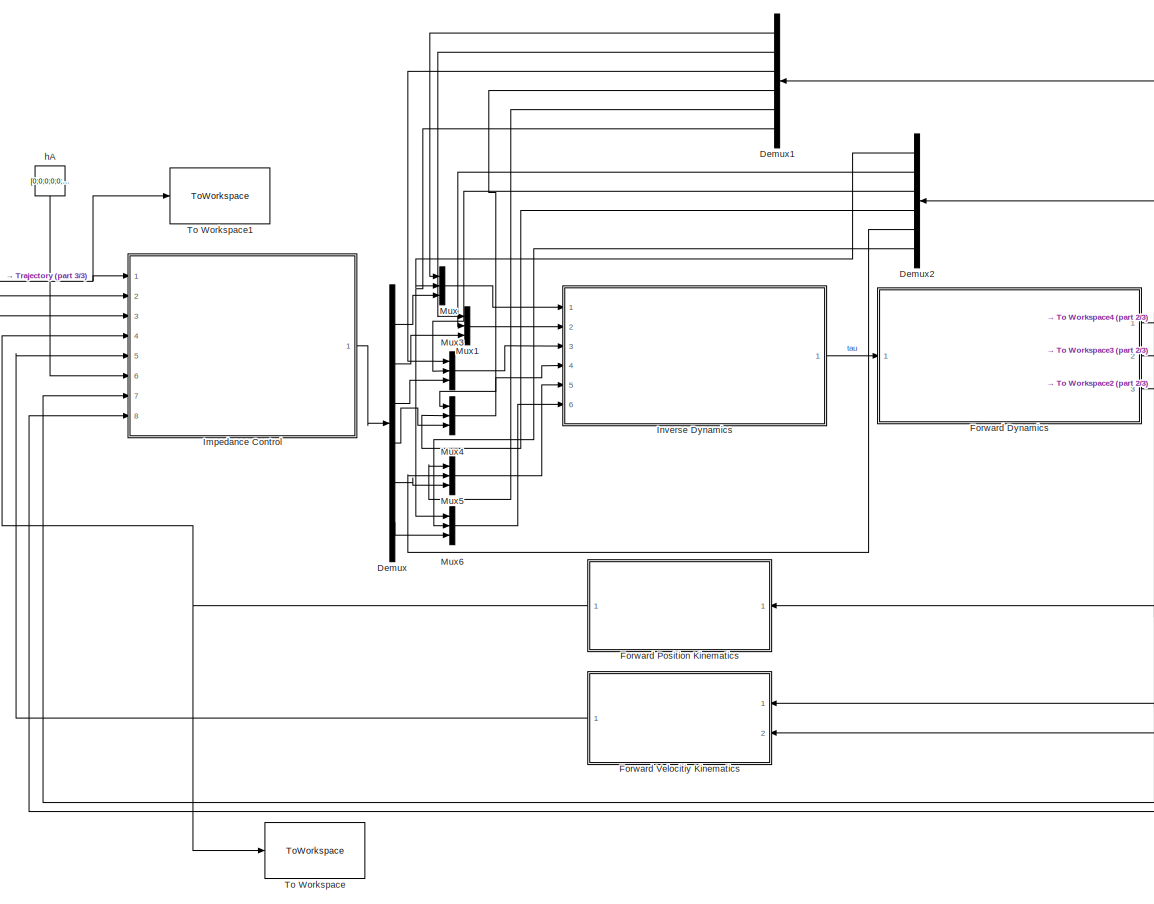
[diagram: root canvas - part 1/3, center side, full height]
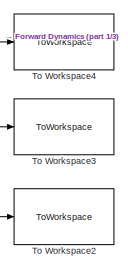
[diagram: root canvas - part 2/3, middle right region]
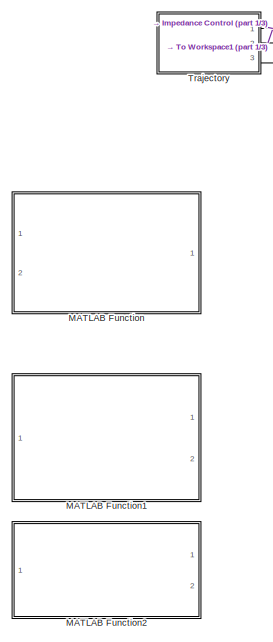
[diagram: root canvas - part 3/3, middle left region]
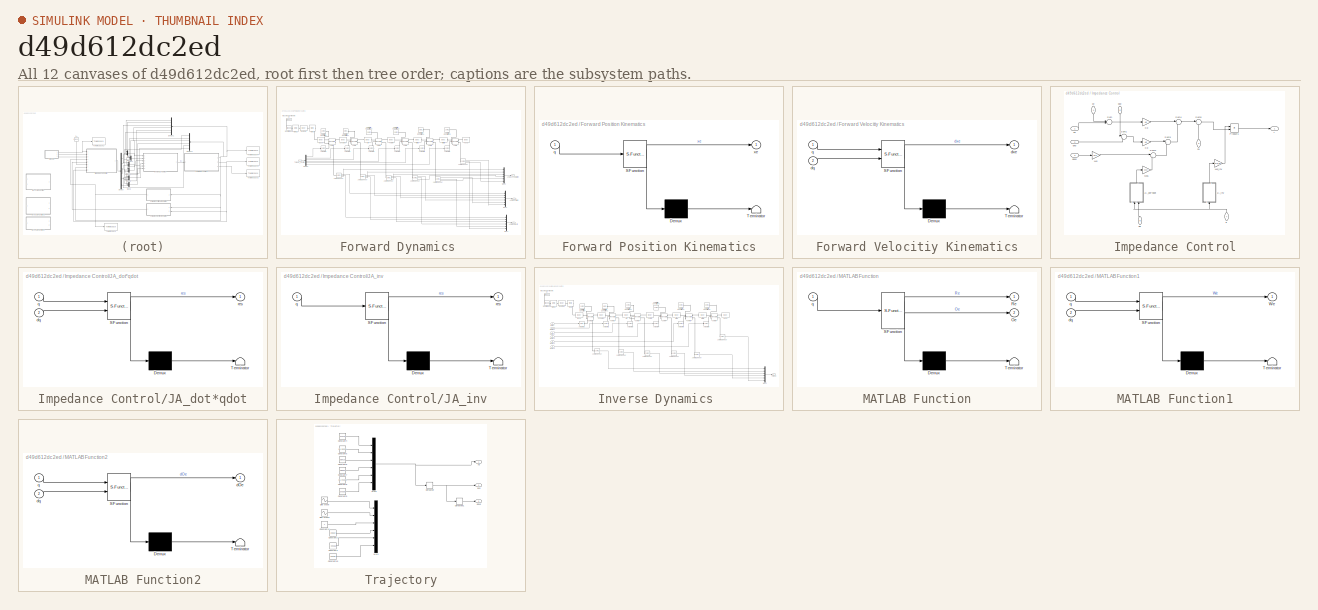
[diagram: thumbnail index - all 12 canvases of the model, root first then tree order]
MODEL slx_d49d612dc2ed
KIND model
CONFIG AbsTol = auto
CONFIG EnableMultiTasking = off
CONFIG FixedStep = auto
CONFIG MaxStep = auto
CONFIG MinStep = auto
CONFIG RelTol = 1e-1
CONFIG SampleTimeConstraint = Unconstrained
CONFIG Solver = ode23t
CONFIG SolverName = ode23t
CONFIG StartTime = 0.0
CONFIG StopTime = 10.0
BLOCK [Demux] Demux
  DisplayOption = bar
  Outputs = 6
  Ports = [1, 6]
BLOCK [Demux] Demux1
  DisplayOption = bar
  Outputs = 6
  Ports = [1, 6]
BLOCK [Demux] Demux2
  DisplayOption = bar
  Outputs = 6
  Ports = [1, 6]
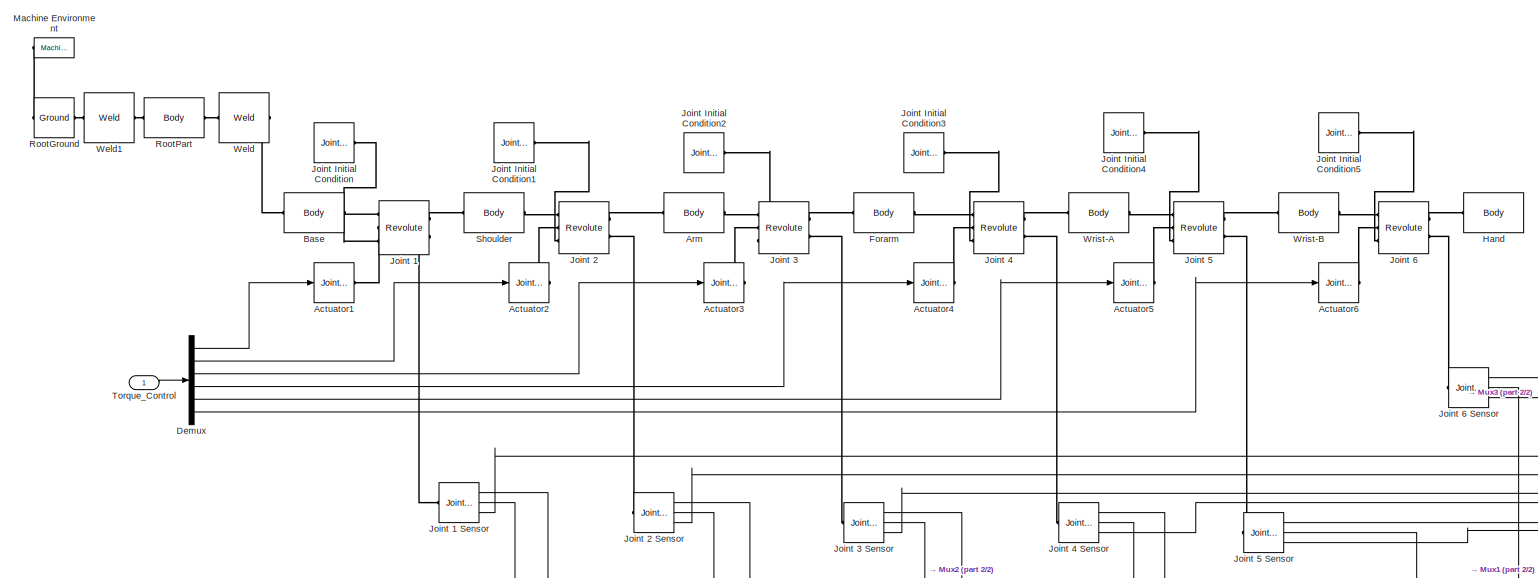
[diagram: Forward Dynamics  - part 1/2, full width, top band]
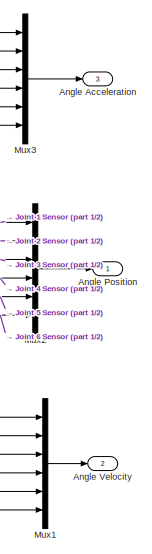
[diagram: Forward Dynamics  - part 2/2, bottom right region]
BLOCK [SubSystem] Forward Dynamics 
  Ports = [1, 3]
  RequestExecContextInheritance = off
  Variant = off
BLOCK [Reference] Forward Dynamics /Actuator1  REF=mblibv1/Sensors & 
Actuators/Joint Actuator
  Ports = [1, 0, 0, 0, 0, 0, 1]
  SourceBlock = mblibv1/Sensors & \nActuators/Joint Actuator
  SourceProductBaseCode = MS
  SourceProductName = Simscape Multibody
  SourceType = Joint Actuator
BLOCK [Reference] Forward Dynamics /Actuator2  REF=mblibv1/Sensors & 
Actuators/Joint Actuator
  Ports = [1, 0, 0, 0, 0, 0, 1]
  SourceBlock = mblibv1/Sensors & \nActuators/Joint Actuator
  SourceProductBaseCode = MS
  SourceProductName = Simscape Multibody
  SourceType = Joint Actuator
BLOCK [Reference] Forward Dynamics /Actuator3  REF=mblibv1/Sensors & 
Actuators/Joint Actuator
  Ports = [1, 0, 0, 0, 0, 0, 1]
  SourceBlock = mblibv1/Sensors & \nActuators/Joint Actuator
  SourceProductBaseCode = MS
  SourceProductName = Simscape Multibody
  SourceType = Joint Actuator
BLOCK [Reference] Forward Dynamics /Actuator4  REF=mblibv1/Sensors & 
Actuators/Joint Actuator
  Ports = [1, 0, 0, 0, 0, 0, 1]
  SourceBlock = mblibv1/Sensors & \nActuators/Joint Actuator
  SourceProductBaseCode = MS
  SourceProductName = Simscape Multibody
  SourceType = Joint Actuator
BLOCK [Reference] Forward Dynamics /Actuator5  REF=mblibv1/Sensors & 
Actuators/Joint Actuator
  Ports = [1, 0, 0, 0, 0, 0, 1]
  SourceBlock = mblibv1/Sensors & \nActuators/Joint Actuator
  SourceProductBaseCode = MS
  SourceProductName = Simscape Multibody
  SourceType = Joint Actuator
BLOCK [Reference] Forward Dynamics /Actuator6  REF=mblibv1/Sensors & 
Actuators/Joint Actuator
  Ports = [1, 0, 0, 0, 0, 0, 1]
  SourceBlock = mblibv1/Sensors & \nActuators/Joint Actuator
  SourceProductBaseCode = MS
  SourceProductName = Simscape Multibody
  SourceType = Joint Actuator
BLOCK [Outport] Forward Dynamics /Angle Acceleration
  IconDisplay = Port number
  Port = 3
BLOCK [Outport] Forward Dynamics /Angle Position 
  IconDisplay = Port number
BLOCK [Outport] Forward Dynamics /Angle Velocity
  IconDisplay = Port number
  Port = 2
BLOCK [Reference] Forward Dynamics /Arm  REF=mblibv1/Bodies/Body
  Ports = [0, 0, 0, 0, 0, 1, 1]
  SourceBlock = mblibv1/Bodies/Body
  SourceProductBaseCode = MS
  SourceProductName = Simscape Multibody
  SourceType = Body
BLOCK [Reference] Forward Dynamics /Base  REF=mblibv1/Bodies/Body
  Ports = [0, 0, 0, 0, 0, 1, 1]
  SourceBlock = mblibv1/Bodies/Body
  SourceProductBaseCode = MS
  SourceProductName = Simscape Multibody
  SourceType = Body
BLOCK [Demux] Forward Dynamics /Demux
  DisplayOption = bar
  Outputs = 6
  Ports = [1, 6]
BLOCK [Reference] Forward Dynamics /Forarm  REF=mblibv1/Bodies/Body
  Ports = [0, 0, 0, 0, 0, 1, 1]
  SourceBlock = mblibv1/Bodies/Body
  SourceProductBaseCode = MS
  SourceProductName = Simscape Multibody
  SourceType = Body
BLOCK [Reference] Forward Dynamics /Hand  REF=mblibv1/Bodies/Body
  Ports = [0, 0, 0, 0, 0, 1]
  SourceBlock = mblibv1/Bodies/Body
  SourceProductBaseCode = MS
  SourceProductName = Simscape Multibody
  SourceType = Body
BLOCK [Reference] Forward Dynamics /Joint 1  REF=mblibv1/Joints/Revolute
  Ports = [0, 0, 0, 0, 0, 3, 2]
  SourceBlock = mblibv1/Joints/Revolute
  SourceProductBaseCode = MS
  SourceProductName = Simscape Multibody
  SourceType = Revolute
BLOCK [Reference] Forward Dynamics /Joint 1 Sensor  REF=mblibv1/Sensors & 
Actuators/Joint Sensor
  Ports = [0, 3, 0, 0, 0, 1]
  SourceBlock = mblibv1/Sensors & \nActuators/Joint Sensor
  SourceProductBaseCode = MS
  SourceProductName = Simscape Multibody
  SourceType = Joint Sensor
BLOCK [Reference] Forward Dynamics /Joint 2  REF=mblibv1/Joints/Revolute
  Ports = [0, 0, 0, 0, 0, 3, 2]
  SourceBlock = mblibv1/Joints/Revolute
  SourceProductBaseCode = MS
  SourceProductName = Simscape Multibody
  SourceType = Revolute
BLOCK [Reference] Forward Dynamics /Joint 2 Sensor  REF=mblibv1/Sensors & 
Actuators/Joint Sensor
  Ports = [0, 3, 0, 0, 0, 1]
  SourceBlock = mblibv1/Sensors & \nActuators/Joint Sensor
  SourceProductBaseCode = MS
  SourceProductName = Simscape Multibody
  SourceType = Joint Sensor
BLOCK [Reference] Forward Dynamics /Joint 3  REF=mblibv1/Joints/Revolute
  Ports = [0, 0, 0, 0, 0, 3, 2]
  SourceBlock = mblibv1/Joints/Revolute
  SourceProductBaseCode = MS
  SourceProductName = Simscape Multibody
  SourceType = Revolute
BLOCK [Reference] Forward Dynamics /Joint 3 Sensor  REF=mblibv1/Sensors & 
Actuators/Joint Sensor
  Ports = [0, 3, 0, 0, 0, 1]
  SourceBlock = mblibv1/Sensors & \nActuators/Joint Sensor
  SourceProductBaseCode = MS
  SourceProductName = Simscape Multibody
  SourceType = Joint Sensor
BLOCK [Reference] Forward Dynamics /Joint 4  REF=mblibv1/Joints/Revolute
  Ports = [0, 0, 0, 0, 0, 3, 2]
  SourceBlock = mblibv1/Joints/Revolute
  SourceProductBaseCode = MS
  SourceProductName = Simscape Multibody
  SourceType = Revolute
BLOCK [Reference] Forward Dynamics /Joint 4 Sensor  REF=mblibv1/Sensors & 
Actuators/Joint Sensor
  Ports = [0, 3, 0, 0, 0, 1]
  SourceBlock = mblibv1/Sensors & \nActuators/Joint Sensor
  SourceProductBaseCode = MS
  SourceProductName = Simscape Multibody
  SourceType = Joint Sensor
BLOCK [Reference] Forward Dynamics /Joint 5  REF=mblibv1/Joints/Revolute
  Ports = [0, 0, 0, 0, 0, 3, 2]
  SourceBlock = mblibv1/Joints/Revolute
  SourceProductBaseCode = MS
  SourceProductName = Simscape Multibody
  SourceType = Revolute
BLOCK [Reference] Forward Dynamics /Joint 5 Sensor  REF=mblibv1/Sensors & 
Actuators/Joint Sensor
  Ports = [0, 3, 0, 0, 0, 1]
  SourceBlock = mblibv1/Sensors & \nActuators/Joint Sensor
  SourceProductBaseCode = MS
  SourceProductName = Simscape Multibody
  SourceType = Joint Sensor
BLOCK [Reference] Forward Dynamics /Joint 6  REF=mblibv1/Joints/Revolute
  Ports = [0, 0, 0, 0, 0, 3, 2]
  SourceBlock = mblibv1/Joints/Revolute
  SourceProductBaseCode = MS
  SourceProductName = Simscape Multibody
  SourceType = Revolute
BLOCK [Reference] Forward Dynamics /Joint 6 Sensor  REF=mblibv1/Sensors & 
Actuators/Joint Sensor
  Ports = [0, 3, 0, 0, 0, 1]
  SourceBlock = mblibv1/Sensors & \nActuators/Joint Sensor
  SourceProductBaseCode = MS
  SourceProductName = Simscape Multibody
  SourceType = Joint Sensor
BLOCK [Reference] Forward Dynamics /Joint Initial Condition  REF=mblibv1/Sensors & 
Actuators/Joint Initial Condition
  Ports = [0, 0, 0, 0, 0, 0, 1]
  SourceBlock = mblibv1/Sensors & \nActuators/Joint Initial Condition
  SourceProductBaseCode = MS
  SourceProductName = Simscape Multibody
  SourceType = Joint Initial Condition
BLOCK [Reference] Forward Dynamics /Joint Initial Condition1  REF=mblibv1/Sensors & 
Actuators/Joint Initial Condition
  Ports = [0, 0, 0, 0, 0, 0, 1]
  SourceBlock = mblibv1/Sensors & \nActuators/Joint Initial Condition
  SourceProductBaseCode = MS
  SourceProductName = Simscape Multibody
  SourceType = Joint Initial Condition
BLOCK [Reference] Forward Dynamics /Joint Initial Condition2  REF=mblibv1/Sensors & 
Actuators/Joint Initial Condition
  Ports = [0, 0, 0, 0, 0, 0, 1]
  SourceBlock = mblibv1/Sensors & \nActuators/Joint Initial Condition
  SourceProductBaseCode = MS
  SourceProductName = Simscape Multibody
  SourceType = Joint Initial Condition
BLOCK [Reference] Forward Dynamics /Joint Initial Condition3  REF=mblibv1/Sensors & 
Actuators/Joint Initial Condition
  Ports = [0, 0, 0, 0, 0, 0, 1]
  SourceBlock = mblibv1/Sensors & \nActuators/Joint Initial Condition
  SourceProductBaseCode = MS
  SourceProductName = Simscape Multibody
  SourceType = Joint Initial Condition
BLOCK [Reference] Forward Dynamics /Joint Initial Condition4  REF=mblibv1/Sensors & 
Actuators/Joint Initial Condition
  Ports = [0, 0, 0, 0, 0, 0, 1]
  SourceBlock = mblibv1/Sensors & \nActuators/Joint Initial Condition
  SourceProductBaseCode = MS
  SourceProductName = Simscape Multibody
  SourceType = Joint Initial Condition
BLOCK [Reference] Forward Dynamics /Joint Initial Condition5  REF=mblibv1/Sensors & 
Actuators/Joint Initial Condition
  Ports = [0, 0, 0, 0, 0, 0, 1]
  SourceBlock = mblibv1/Sensors & \nActuators/Joint Initial Condition
  SourceProductBaseCode = MS
  SourceProductName = Simscape Multibody
  SourceType = Joint Initial Condition
BLOCK [Reference] Forward Dynamics /Machine Environment  REF=mblibv1/Bodies/Machine
Environment
  Ports = [0, 0, 0, 0, 0, 0, 1]
  SourceBlock = mblibv1/Bodies/Machine\nEnvironment
  SourceProductBaseCode = MS
  SourceProductName = Simscape Multibody
  SourceType = Machine Environment
BLOCK [Mux] Forward Dynamics /Mux1
  DisplayOption = bar
  Inputs = 6
  Ports = [6, 1]
BLOCK [Mux] Forward Dynamics /Mux2
  DisplayOption = bar
  Inputs = 6
  Ports = [6, 1]
BLOCK [Mux] Forward Dynamics /Mux3
  DisplayOption = bar
  Inputs = 6
  Ports = [6, 1]
BLOCK [Reference] Forward Dynamics /RootGround  REF=mblibv1/Bodies/Ground
  Ports = [0, 0, 0, 0, 0, 1, 1]
  SourceBlock = mblibv1/Bodies/Ground
  SourceProductBaseCode = MS
  SourceProductName = Simscape Multibody
  SourceType = Ground
  UserDataPersistent = on
BLOCK [Reference] Forward Dynamics /RootPart  REF=mblibv1/Bodies/Body
  Ports = [0, 0, 0, 0, 0, 1, 1]
  SourceBlock = mblibv1/Bodies/Body
  SourceProductBaseCode = MS
  SourceProductName = Simscape Multibody
  SourceType = Body
BLOCK [Reference] Forward Dynamics /Shoulder  REF=mblibv1/Bodies/Body
  Ports = [0, 0, 0, 0, 0, 1, 1]
  SourceBlock = mblibv1/Bodies/Body
  SourceProductBaseCode = MS
  SourceProductName = Simscape Multibody
  SourceType = Body
BLOCK [Inport] Forward Dynamics /Torque_Control 
  IconDisplay = Port number
BLOCK [Reference] Forward Dynamics /Weld  REF=mblibv1/Joints/Weld
  Ports = [0, 0, 0, 0, 0, 1, 1]
  SourceBlock = mblibv1/Joints/Weld
  SourceProductBaseCode = MS
  SourceProductName = Simscape Multibody
  SourceType = Weld
BLOCK [Reference] Forward Dynamics /Weld1  REF=mblibv1/Joints/Weld
  Ports = [0, 0, 0, 0, 0, 1, 1]
  SourceBlock = mblibv1/Joints/Weld
  SourceProductBaseCode = MS
  SourceProductName = Simscape Multibody
  SourceType = Weld
BLOCK [Reference] Forward Dynamics /Wrist-A  REF=mblibv1/Bodies/Body
  Ports = [0, 0, 0, 0, 0, 1, 1]
  SourceBlock = mblibv1/Bodies/Body
  SourceProductBaseCode = MS
  SourceProductName = Simscape Multibody
  SourceType = Body
BLOCK [Reference] Forward Dynamics /Wrist-B  REF=mblibv1/Bodies/Body
  Ports = [0, 0, 0, 0, 0, 1, 1]
  SourceBlock = mblibv1/Bodies/Body
  SourceProductBaseCode = MS
  SourceProductName = Simscape Multibody
  SourceType = Body
BLOCK [SubSystem] Forward Position Kinematics
  ErrorFcn = Stateflow.Translate.translate
  PermitHierarchicalResolution = ExplicitOnly
  Ports = [1, 1]
  RequestExecContextInheritance = off
  SFBlockType = MATLAB Function
  TreatAsAtomicUnit = on
  Variant = off
BLOCK [Demux] Forward Position Kinematics/ Demux 
  Outputs = 1
  Ports = [1, 1]
BLOCK [S-Function] Forward Position Kinematics/ SFunction 
  EnableBusSupport = on
  FunctionName = sf_sfun
  PortCounts = [1 2]
  Ports = [1, 2]
  SFcnIsStateOwnerBlock = off
  SFunctionDeploymentMode = off
  Tag = Stateflow S-Function ImpedanceControl 4
BLOCK [Terminator] Forward Position Kinematics/ Terminator 
BLOCK [Inport] Forward Position Kinematics/q
  IconDisplay = Port number
BLOCK [Outport] Forward Position Kinematics/xe
  IconDisplay = Port number
BLOCK [SubSystem] Forward Velocitiy Kinematics
  ErrorFcn = Stateflow.Translate.translate
  PermitHierarchicalResolution = ExplicitOnly
  Ports = [2, 1]
  RequestExecContextInheritance = off
  SFBlockType = MATLAB Function
  TreatAsAtomicUnit = on
  Variant = off
BLOCK [Demux] Forward Velocitiy Kinematics/ Demux 
  Outputs = 1
  Ports = [1, 1]
BLOCK [S-Function] Forward Velocitiy Kinematics/ SFunction 
  EnableBusSupport = on
  FunctionName = sf_sfun
  PortCounts = [2 2]
  Ports = [2, 2]
  SFcnIsStateOwnerBlock = off
  SFunctionDeploymentMode = off
  Tag = Stateflow S-Function ImpedanceControl 5
BLOCK [Terminator] Forward Velocitiy Kinematics/ Terminator 
BLOCK [Inport] Forward Velocitiy Kinematics/dq
  IconDisplay = Port number
  Port = 2
BLOCK [Outport] Forward Velocitiy Kinematics/dxe
  IconDisplay = Port number
BLOCK [Inport] Forward Velocitiy Kinematics/q
  IconDisplay = Port number
BLOCK [SubSystem] Impedance Control
  Ports = [8, 1]
  RequestExecContextInheritance = off
  Variant = off
BLOCK [SubSystem] Impedance Control/JA_dot*qdot
  ErrorFcn = Stateflow.Translate.translate
  PermitHierarchicalResolution = ExplicitOnly
  Ports = [2, 1]
  RequestExecContextInheritance = off
  SFBlockType = MATLAB Function
  TreatAsAtomicUnit = on
  Variant = off
BLOCK [Demux] Impedance Control/JA_dot*qdot/ Demux 
  Outputs = 1
  Ports = [1, 1]
BLOCK [S-Function] Impedance Control/JA_dot*qdot/ SFunction 
  EnableBusSupport = on
  FunctionName = sf_sfun
  PortCounts = [2 2]
  Ports = [2, 2]
  SFcnIsStateOwnerBlock = off
  SFunctionDeploymentMode = off
  Tag = Stateflow S-Function ImpedanceControl 7
BLOCK [Terminator] Impedance Control/JA_dot*qdot/ Terminator 
BLOCK [Inport] Impedance Control/JA_dot*qdot/dq
  IconDisplay = Port number
  Port = 2
BLOCK [Inport] Impedance Control/JA_dot*qdot/q
  IconDisplay = Port number
BLOCK [Outport] Impedance Control/JA_dot*qdot/res
  IconDisplay = Port number
BLOCK [SubSystem] Impedance Control/JA_inv
  ErrorFcn = Stateflow.Translate.translate
  PermitHierarchicalResolution = ExplicitOnly
  Ports = [1, 1]
  RequestExecContextInheritance = off
  SFBlockType = MATLAB Function
  TreatAsAtomicUnit = on
  Variant = off
BLOCK [Demux] Impedance Control/JA_inv/ Demux 
  Outputs = 1
  Ports = [1, 1]
BLOCK [S-Function] Impedance Control/JA_inv/ SFunction 
  EnableBusSupport = on
  FunctionName = sf_sfun
  PortCounts = [1 2]
  Ports = [1, 2]
  SFcnIsStateOwnerBlock = off
  SFunctionDeploymentMode = off
  Tag = Stateflow S-Function ImpedanceControl 6
BLOCK [Terminator] Impedance Control/JA_inv/ Terminator 
BLOCK [Inport] Impedance Control/JA_inv/q
  IconDisplay = Port number
BLOCK [Outport] Impedance Control/JA_inv/res
  IconDisplay = Port number
BLOCK [Gain] Impedance Control/Kd
  Gain = Kd
  Multiplication = Matrix(K*u)
  OutDataTypeStr = Inherit: Inherit via internal rule
  ParamDataTypeStr = Inherit: Inherit via internal rule
  SaturateOnIntegerOverflow = off
BLOCK [Gain] Impedance Control/Kp
  Gain = Kp
  Multiplication = Matrix(K*u)
  OutDataTypeStr = Inherit: Inherit via internal rule
  ParamDataTypeStr = Inherit: Inherit via internal rule
  SaturateOnIntegerOverflow = off
BLOCK [Gain] Impedance Control/Md
  Gain = Md
  Multiplication = Matrix(K*u)
  OutDataTypeStr = Inherit: Inherit via internal rule
  ParamDataTypeStr = Inherit: Inherit via internal rule
  SaturateOnIntegerOverflow = off
BLOCK [Gain] Impedance Control/Md1
  Gain = Md
  Multiplication = Matrix(K*u)
  OutDataTypeStr = Inherit: Inherit via internal rule
  ParamDataTypeStr = Inherit: Inherit via internal rule
  SaturateOnIntegerOverflow = off
BLOCK [Gain] Impedance Control/Md_inv
  Gain = Md_inv
  Multiplication = Matrix(u*K)
  OutDataTypeStr = Inherit: Inherit via internal rule
  ParamDataTypeStr = Inherit: Inherit via internal rule
  SaturateOnIntegerOverflow = off
BLOCK [Product] Impedance Control/Product1
  InputSameDT = off
  Multiplication = Matrix(*)
  OutDataTypeStr = Inherit: Inherit via internal rule
  Ports = [2, 1]
  RndMeth = Floor
  SaturateOnIntegerOverflow = off
BLOCK [Sum] Impedance Control/Sum
  IconShape = round
  InputSameDT = off
  Inputs = |-+
  OutDataTypeStr = Inherit: Inherit via internal rule
  Ports = [2, 1]
  SaturateOnIntegerOverflow = off
BLOCK [Sum] Impedance Control/Sum1
  IconShape = round
  InputSameDT = off
  Inputs = |-+
  OutDataTypeStr = Inherit: Inherit via internal rule
  Ports = [2, 1]
  SaturateOnIntegerOverflow = off
BLOCK [Sum] Impedance Control/Sum2
  IconShape = round
  InputSameDT = off
  Inputs = |+-
  OutDataTypeStr = Inherit: Inherit via internal rule
  Ports = [2, 1]
  SaturateOnIntegerOverflow = off
BLOCK [Sum] Impedance Control/Sum3
  IconShape = round
  InputSameDT = off
  Inputs = |++
  OutDataTypeStr = Inherit: Inherit via internal rule
  Ports = [2, 1]
  SaturateOnIntegerOverflow = off
BLOCK [Sum] Impedance Control/Sum4
  IconShape = round
  InputSameDT = off
  Inputs = |++
  OutDataTypeStr = Inherit: Inherit via internal rule
  Ports = [2, 1]
  SaturateOnIntegerOverflow = off
BLOCK [Sum] Impedance Control/Sum5
  IconShape = round
  InputSameDT = off
  Inputs = |+-
  OutDataTypeStr = Inherit: Inherit via internal rule
  Ports = [2, 1]
  SaturateOnIntegerOverflow = off
BLOCK [Inport] Impedance Control/ddxd
  IconDisplay = Port number
  Port = 3
BLOCK [Inport] Impedance Control/dq
  IconDisplay = Port number
  Port = 8
BLOCK [Inport] Impedance Control/dxd
  IconDisplay = Port number
  Port = 2
BLOCK [Inport] Impedance Control/dxe
  IconDisplay = Port number
  Port = 5
BLOCK [Inport] Impedance Control/ha
  IconDisplay = Port number
  Port = 6
BLOCK [Inport] Impedance Control/q
  IconDisplay = Port number
  Port = 7
BLOCK [Inport] Impedance Control/xd
  IconDisplay = Port number
BLOCK [Inport] Impedance Control/xe
  IconDisplay = Port number
  Port = 4
BLOCK [Outport] Impedance Control/y
  IconDisplay = Port number
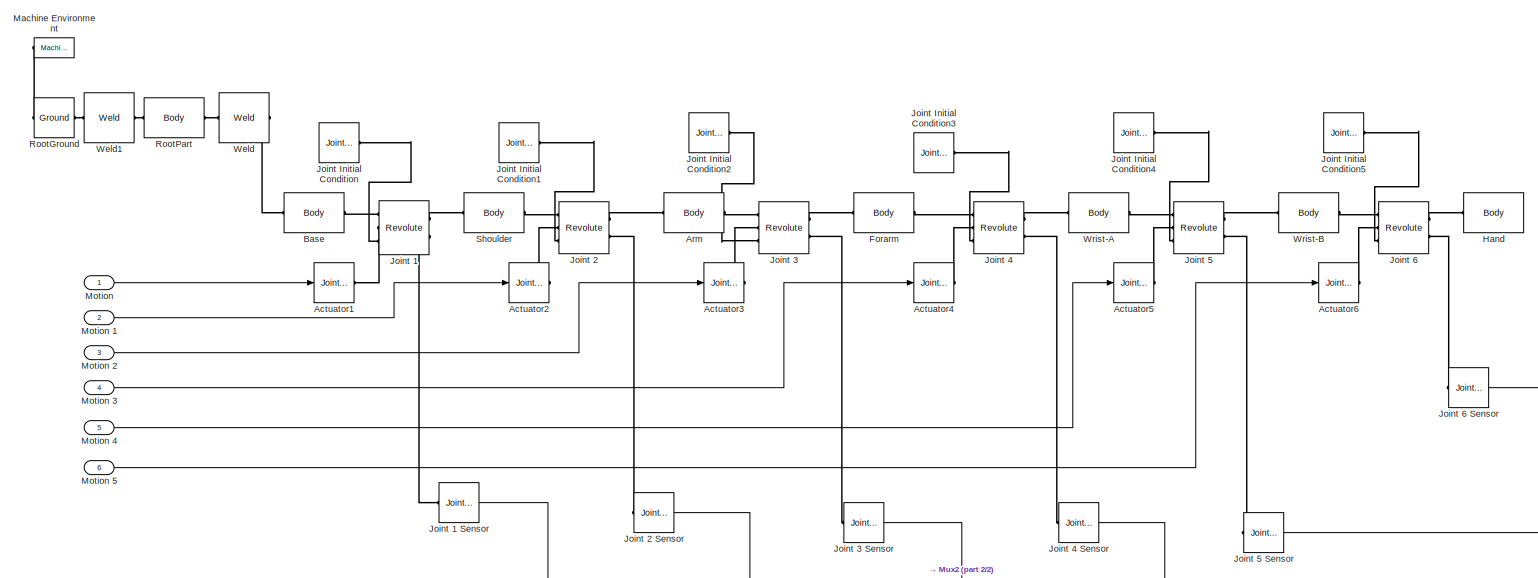
[diagram: Inverse Dynamics  - part 1/2, full width, middle band]
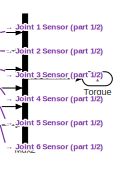
[diagram: Inverse Dynamics  - part 2/2, bottom right region]
BLOCK [SubSystem] Inverse Dynamics 
  Ports = [6, 1]
  RequestExecContextInheritance = off
  Variant = off
BLOCK [Reference] Inverse Dynamics /Actuator1  REF=mblibv1/Sensors & 
Actuators/Joint Actuator
  Ports = [1, 0, 0, 0, 0, 0, 1]
  SourceBlock = mblibv1/Sensors & \nActuators/Joint Actuator
  SourceProductBaseCode = MS
  SourceProductName = Simscape Multibody
  SourceType = Joint Actuator
BLOCK [Reference] Inverse Dynamics /Actuator2  REF=mblibv1/Sensors & 
Actuators/Joint Actuator
  Ports = [1, 0, 0, 0, 0, 0, 1]
  SourceBlock = mblibv1/Sensors & \nActuators/Joint Actuator
  SourceProductBaseCode = MS
  SourceProductName = Simscape Multibody
  SourceType = Joint Actuator
BLOCK [Reference] Inverse Dynamics /Actuator3  REF=mblibv1/Sensors & 
Actuators/Joint Actuator
  Ports = [1, 0, 0, 0, 0, 0, 1]
  SourceBlock = mblibv1/Sensors & \nActuators/Joint Actuator
  SourceProductBaseCode = MS
  SourceProductName = Simscape Multibody
  SourceType = Joint Actuator
BLOCK [Reference] Inverse Dynamics /Actuator4  REF=mblibv1/Sensors & 
Actuators/Joint Actuator
  Ports = [1, 0, 0, 0, 0, 0, 1]
  SourceBlock = mblibv1/Sensors & \nActuators/Joint Actuator
  SourceProductBaseCode = MS
  SourceProductName = Simscape Multibody
  SourceType = Joint Actuator
BLOCK [Reference] Inverse Dynamics /Actuator5  REF=mblibv1/Sensors & 
Actuators/Joint Actuator
  Ports = [1, 0, 0, 0, 0, 0, 1]
  SourceBlock = mblibv1/Sensors & \nActuators/Joint Actuator
  SourceProductBaseCode = MS
  SourceProductName = Simscape Multibody
  SourceType = Joint Actuator
BLOCK [Reference] Inverse Dynamics /Actuator6  REF=mblibv1/Sensors & 
Actuators/Joint Actuator
  Ports = [1, 0, 0, 0, 0, 0, 1]
  SourceBlock = mblibv1/Sensors & \nActuators/Joint Actuator
  SourceProductBaseCode = MS
  SourceProductName = Simscape Multibody
  SourceType = Joint Actuator
BLOCK [Reference] Inverse Dynamics /Arm  REF=mblibv1/Bodies/Body
  Ports = [0, 0, 0, 0, 0, 1, 1]
  SourceBlock = mblibv1/Bodies/Body
  SourceProductBaseCode = MS
  SourceProductName = Simscape Multibody
  SourceType = Body
BLOCK [Reference] Inverse Dynamics /Base  REF=mblibv1/Bodies/Body
  Ports = [0, 0, 0, 0, 0, 1, 1]
  SourceBlock = mblibv1/Bodies/Body
  SourceProductBaseCode = MS
  SourceProductName = Simscape Multibody
  SourceType = Body
BLOCK [Reference] Inverse Dynamics /Forarm  REF=mblibv1/Bodies/Body
  Ports = [0, 0, 0, 0, 0, 1, 1]
  SourceBlock = mblibv1/Bodies/Body
  SourceProductBaseCode = MS
  SourceProductName = Simscape Multibody
  SourceType = Body
BLOCK [Reference] Inverse Dynamics /Hand  REF=mblibv1/Bodies/Body
  Ports = [0, 0, 0, 0, 0, 1]
  SourceBlock = mblibv1/Bodies/Body
  SourceProductBaseCode = MS
  SourceProductName = Simscape Multibody
  SourceType = Body
BLOCK [Reference] Inverse Dynamics /Joint 1  REF=mblibv1/Joints/Revolute
  Ports = [0, 0, 0, 0, 0, 3, 2]
  SourceBlock = mblibv1/Joints/Revolute
  SourceProductBaseCode = MS
  SourceProductName = Simscape Multibody
  SourceType = Revolute
BLOCK [Reference] Inverse Dynamics /Joint 1 Sensor  REF=mblibv1/Sensors & 
Actuators/Joint Sensor
  Ports = [0, 1, 0, 0, 0, 1]
  SourceBlock = mblibv1/Sensors & \nActuators/Joint Sensor
  SourceProductBaseCode = MS
  SourceProductName = Simscape Multibody
  SourceType = Joint Sensor
BLOCK [Reference] Inverse Dynamics /Joint 2  REF=mblibv1/Joints/Revolute
  Ports = [0, 0, 0, 0, 0, 3, 2]
  SourceBlock = mblibv1/Joints/Revolute
  SourceProductBaseCode = MS
  SourceProductName = Simscape Multibody
  SourceType = Revolute
BLOCK [Reference] Inverse Dynamics /Joint 2 Sensor  REF=mblibv1/Sensors & 
Actuators/Joint Sensor
  Ports = [0, 1, 0, 0, 0, 1]
  SourceBlock = mblibv1/Sensors & \nActuators/Joint Sensor
  SourceProductBaseCode = MS
  SourceProductName = Simscape Multibody
  SourceType = Joint Sensor
BLOCK [Reference] Inverse Dynamics /Joint 3  REF=mblibv1/Joints/Revolute
  Ports = [0, 0, 0, 0, 0, 3, 2]
  SourceBlock = mblibv1/Joints/Revolute
  SourceProductBaseCode = MS
  SourceProductName = Simscape Multibody
  SourceType = Revolute
BLOCK [Reference] Inverse Dynamics /Joint 3 Sensor  REF=mblibv1/Sensors & 
Actuators/Joint Sensor
  Ports = [0, 1, 0, 0, 0, 1]
  SourceBlock = mblibv1/Sensors & \nActuators/Joint Sensor
  SourceProductBaseCode = MS
  SourceProductName = Simscape Multibody
  SourceType = Joint Sensor
BLOCK [Reference] Inverse Dynamics /Joint 4  REF=mblibv1/Joints/Revolute
  Ports = [0, 0, 0, 0, 0, 3, 2]
  SourceBlock = mblibv1/Joints/Revolute
  SourceProductBaseCode = MS
  SourceProductName = Simscape Multibody
  SourceType = Revolute
BLOCK [Reference] Inverse Dynamics /Joint 4 Sensor  REF=mblibv1/Sensors & 
Actuators/Joint Sensor
  Ports = [0, 1, 0, 0, 0, 1]
  SourceBlock = mblibv1/Sensors & \nActuators/Joint Sensor
  SourceProductBaseCode = MS
  SourceProductName = Simscape Multibody
  SourceType = Joint Sensor
BLOCK [Reference] Inverse Dynamics /Joint 5  REF=mblibv1/Joints/Revolute
  Ports = [0, 0, 0, 0, 0, 3, 2]
  SourceBlock = mblibv1/Joints/Revolute
  SourceProductBaseCode = MS
  SourceProductName = Simscape Multibody
  SourceType = Revolute
BLOCK [Reference] Inverse Dynamics /Joint 5 Sensor  REF=mblibv1/Sensors & 
Actuators/Joint Sensor
  Ports = [0, 1, 0, 0, 0, 1]
  SourceBlock = mblibv1/Sensors & \nActuators/Joint Sensor
  SourceProductBaseCode = MS
  SourceProductName = Simscape Multibody
  SourceType = Joint Sensor
BLOCK [Reference] Inverse Dynamics /Joint 6  REF=mblibv1/Joints/Revolute
  Ports = [0, 0, 0, 0, 0, 3, 2]
  SourceBlock = mblibv1/Joints/Revolute
  SourceProductBaseCode = MS
  SourceProductName = Simscape Multibody
  SourceType = Revolute
BLOCK [Reference] Inverse Dynamics /Joint 6 Sensor  REF=mblibv1/Sensors & 
Actuators/Joint Sensor
  Ports = [0, 1, 0, 0, 0, 1]
  SourceBlock = mblibv1/Sensors & \nActuators/Joint Sensor
  SourceProductBaseCode = MS
  SourceProductName = Simscape Multibody
  SourceType = Joint Sensor
BLOCK [Reference] Inverse Dynamics /Joint Initial Condition  REF=mblibv1/Sensors & 
Actuators/Joint Initial Condition
  Ports = [0, 0, 0, 0, 0, 0, 1]
  SourceBlock = mblibv1/Sensors & \nActuators/Joint Initial Condition
  SourceProductBaseCode = MS
  SourceProductName = Simscape Multibody
  SourceType = Joint Initial Condition
BLOCK [Reference] Inverse Dynamics /Joint Initial Condition1  REF=mblibv1/Sensors & 
Actuators/Joint Initial Condition
  Ports = [0, 0, 0, 0, 0, 0, 1]
  SourceBlock = mblibv1/Sensors & \nActuators/Joint Initial Condition
  SourceProductBaseCode = MS
  SourceProductName = Simscape Multibody
  SourceType = Joint Initial Condition
BLOCK [Reference] Inverse Dynamics /Joint Initial Condition2  REF=mblibv1/Sensors & 
Actuators/Joint Initial Condition
  Ports = [0, 0, 0, 0, 0, 0, 1]
  SourceBlock = mblibv1/Sensors & \nActuators/Joint Initial Condition
  SourceProductBaseCode = MS
  SourceProductName = Simscape Multibody
  SourceType = Joint Initial Condition
BLOCK [Reference] Inverse Dynamics /Joint Initial Condition3  REF=mblibv1/Sensors & 
Actuators/Joint Initial Condition
  Ports = [0, 0, 0, 0, 0, 0, 1]
  SourceBlock = mblibv1/Sensors & \nActuators/Joint Initial Condition
  SourceProductBaseCode = MS
  SourceProductName = Simscape Multibody
  SourceType = Joint Initial Condition
BLOCK [Reference] Inverse Dynamics /Joint Initial Condition4  REF=mblibv1/Sensors & 
Actuators/Joint Initial Condition
  Ports = [0, 0, 0, 0, 0, 0, 1]
  SourceBlock = mblibv1/Sensors & \nActuators/Joint Initial Condition
  SourceProductBaseCode = MS
  SourceProductName = Simscape Multibody
  SourceType = Joint Initial Condition
BLOCK [Reference] Inverse Dynamics /Joint Initial Condition5  REF=mblibv1/Sensors & 
Actuators/Joint Initial Condition
  Ports = [0, 0, 0, 0, 0, 0, 1]
  SourceBlock = mblibv1/Sensors & \nActuators/Joint Initial Condition
  SourceProductBaseCode = MS
  SourceProductName = Simscape Multibody
  SourceType = Joint Initial Condition
BLOCK [Reference] Inverse Dynamics /Machine Environment  REF=mblibv1/Bodies/Machine
Environment
  Ports = [0, 0, 0, 0, 0, 0, 1]
  SourceBlock = mblibv1/Bodies/Machine\nEnvironment
  SourceProductBaseCode = MS
  SourceProductName = Simscape Multibody
  SourceType = Machine Environment
BLOCK [Inport] Inverse Dynamics /Motion 
  IconDisplay = Port number
BLOCK [Inport] Inverse Dynamics /Motion 1
  IconDisplay = Port number
  Port = 2
BLOCK [Inport] Inverse Dynamics /Motion 2
  IconDisplay = Port number
  Port = 3
BLOCK [Inport] Inverse Dynamics /Motion 3
  IconDisplay = Port number
  Port = 4
BLOCK [Inport] Inverse Dynamics /Motion 4
  IconDisplay = Port number
  Port = 5
BLOCK [Inport] Inverse Dynamics /Motion 5
  IconDisplay = Port number
  Port = 6
BLOCK [Mux] Inverse Dynamics /Mux2
  DisplayOption = bar
  Inputs = 6
  Ports = [6, 1]
BLOCK [Reference] Inverse Dynamics /RootGround  REF=mblibv1/Bodies/Ground
  Ports = [0, 0, 0, 0, 0, 1, 1]
  SourceBlock = mblibv1/Bodies/Ground
  SourceProductBaseCode = MS
  SourceProductName = Simscape Multibody
  SourceType = Ground
  UserDataPersistent = on
BLOCK [Reference] Inverse Dynamics /RootPart  REF=mblibv1/Bodies/Body
  Ports = [0, 0, 0, 0, 0, 1, 1]
  SourceBlock = mblibv1/Bodies/Body
  SourceProductBaseCode = MS
  SourceProductName = Simscape Multibody
  SourceType = Body
BLOCK [Reference] Inverse Dynamics /Shoulder  REF=mblibv1/Bodies/Body
  Ports = [0, 0, 0, 0, 0, 1, 1]
  SourceBlock = mblibv1/Bodies/Body
  SourceProductBaseCode = MS
  SourceProductName = Simscape Multibody
  SourceType = Body
BLOCK [Outport] Inverse Dynamics /Torque 
  IconDisplay = Port number
BLOCK [Reference] Inverse Dynamics /Weld  REF=mblibv1/Joints/Weld
  Ports = [0, 0, 0, 0, 0, 1, 1]
  SourceBlock = mblibv1/Joints/Weld
  SourceProductBaseCode = MS
  SourceProductName = Simscape Multibody
  SourceType = Weld
BLOCK [Reference] Inverse Dynamics /Weld1  REF=mblibv1/Joints/Weld
  Ports = [0, 0, 0, 0, 0, 1, 1]
  SourceBlock = mblibv1/Joints/Weld
  SourceProductBaseCode = MS
  SourceProductName = Simscape Multibody
  SourceType = Weld
BLOCK [Reference] Inverse Dynamics /Wrist-A  REF=mblibv1/Bodies/Body
  Ports = [0, 0, 0, 0, 0, 1, 1]
  SourceBlock = mblibv1/Bodies/Body
  SourceProductBaseCode = MS
  SourceProductName = Simscape Multibody
  SourceType = Body
BLOCK [Reference] Inverse Dynamics /Wrist-B  REF=mblibv1/Bodies/Body
  Ports = [0, 0, 0, 0, 0, 1, 1]
  SourceBlock = mblibv1/Bodies/Body
  SourceProductBaseCode = MS
  SourceProductName = Simscape Multibody
  SourceType = Body
BLOCK [SubSystem] MATLAB Function
  Commented = on
  ErrorFcn = Stateflow.Translate.translate
  PermitHierarchicalResolution = ExplicitOnly
  Ports = [1, 2]
  RequestExecContextInheritance = off
  SFBlockType = MATLAB Function
  TreatAsAtomicUnit = on
  Variant = off
BLOCK [Demux] MATLAB Function/ Demux 
  Outputs = 1
  Ports = [1, 1]
BLOCK [S-Function] MATLAB Function/ SFunction 
  EnableBusSupport = on
  FunctionName = sf_sfun
  PortCounts = [1 3]
  Ports = [1, 3]
  SFcnIsStateOwnerBlock = off
  SFunctionDeploymentMode = off
  Tag = Stateflow S-Function ImpedanceControl 2
BLOCK [Terminator] MATLAB Function/ Terminator 
BLOCK [Outport] MATLAB Function/Oe
  IconDisplay = Port number
  Port = 2
BLOCK [Outport] MATLAB Function/Re
  IconDisplay = Port number
BLOCK [Inport] MATLAB Function/q
  IconDisplay = Port number
BLOCK [SubSystem] MATLAB Function1
  Commented = on
  ErrorFcn = Stateflow.Translate.translate
  PermitHierarchicalResolution = ExplicitOnly
  Ports = [2, 1]
  RequestExecContextInheritance = off
  SFBlockType = MATLAB Function
  TreatAsAtomicUnit = on
  Variant = off
BLOCK [Demux] MATLAB Function1/ Demux 
  Outputs = 1
  Ports = [1, 1]
BLOCK [S-Function] MATLAB Function1/ SFunction 
  EnableBusSupport = on
  FunctionName = sf_sfun
  PortCounts = [2 2]
  Ports = [2, 2]
  SFcnIsStateOwnerBlock = off
  SFunctionDeploymentMode = off
  Tag = Stateflow S-Function ImpedanceControl 1
BLOCK [Terminator] MATLAB Function1/ Terminator 
BLOCK [Outport] MATLAB Function1/We
  IconDisplay = Port number
BLOCK [Inport] MATLAB Function1/dq
  IconDisplay = Port number
  Port = 2
BLOCK [Inport] MATLAB Function1/q
  IconDisplay = Port number
BLOCK [SubSystem] MATLAB Function2
  Commented = on
  ErrorFcn = Stateflow.Translate.translate
  PermitHierarchicalResolution = ExplicitOnly
  Ports = [2, 1]
  RequestExecContextInheritance = off
  SFBlockType = MATLAB Function
  TreatAsAtomicUnit = on
  Variant = off
BLOCK [Demux] MATLAB Function2/ Demux 
  Outputs = 1
  Ports = [1, 1]
BLOCK [S-Function] MATLAB Function2/ SFunction 
  EnableBusSupport = on
  FunctionName = sf_sfun
  PortCounts = [2 2]
  Ports = [2, 2]
  SFcnIsStateOwnerBlock = off
  SFunctionDeploymentMode = off
  Tag = Stateflow S-Function ImpedanceControl 3
BLOCK [Terminator] MATLAB Function2/ Terminator 
BLOCK [Outport] MATLAB Function2/dOe
  IconDisplay = Port number
BLOCK [Inport] MATLAB Function2/dq
  IconDisplay = Port number
  Port = 2
BLOCK [Inport] MATLAB Function2/q
  IconDisplay = Port number
BLOCK [Mux] Mux
  DisplayOption = bar
  Inputs = 3
  Ports = [3, 1]
BLOCK [Mux] Mux1
  DisplayOption = bar
  Inputs = 3
  Ports = [3, 1]
BLOCK [Mux] Mux3
  DisplayOption = bar
  Inputs = 3
  Ports = [3, 1]
BLOCK [Mux] Mux4
  DisplayOption = bar
  Inputs = 3
  Ports = [3, 1]
BLOCK [Mux] Mux5
  DisplayOption = bar
  Inputs = 3
  Ports = [3, 1]
BLOCK [Mux] Mux6
  DisplayOption = bar
  Inputs = 3
  Ports = [3, 1]
BLOCK [ToWorkspace] To Workspace
  FixptAsFi = on
  MaxDataPoints = inf
  Ports = [1]
  SampleTime = -1
  Save2DSignal = 3-D array (concatenate along third dimension)
  SaveFormat = Timeseries
  VariableName = xe
BLOCK [ToWorkspace] To Workspace1
  FixptAsFi = on
  MaxDataPoints = inf
  Ports = [1]
  SampleTime = -1
  Save2DSignal = 3-D array (concatenate along third dimension)
  SaveFormat = Timeseries
  VariableName = xd
BLOCK [ToWorkspace] To Workspace2
  FixptAsFi = on
  MaxDataPoints = inf
  Ports = [1]
  SampleTime = -1
  Save2DSignal = 3-D array (concatenate along third dimension)
  SaveFormat = Timeseries
  VariableName = ddq
BLOCK [ToWorkspace] To Workspace3
  FixptAsFi = on
  MaxDataPoints = inf
  Ports = [1]
  SampleTime = -1
  Save2DSignal = 3-D array (concatenate along third dimension)
  SaveFormat = Timeseries
  VariableName = dq
BLOCK [ToWorkspace] To Workspace4
  FixptAsFi = on
  MaxDataPoints = inf
  Ports = [1]
  SampleTime = -1
  Save2DSignal = 3-D array (concatenate along third dimension)
  SaveFormat = Timeseries
  VariableName = q
BLOCK [SubSystem] Trajectory
  Ports = [0, 3]
  RequestExecContextInheritance = off
  Variant = off
BLOCK [Constant] Trajectory/Constant10
  Value = 0.2038
  VectorParams1D = off
BLOCK [Constant] Trajectory/Constant11
  VectorParams1D = off
BLOCK [Constant] Trajectory/Constant2
  Value = 2.3663
  VectorParams1D = off
BLOCK [Constant] Trajectory/Constant3
  Value = -0.4265
  VectorParams1D = off
BLOCK [Constant] Trajectory/Constant4
  Value = 0.7075
  VectorParams1D = off
BLOCK [Constant] Trajectory/Constant5
  Value = 0.5-0.0204
  VectorParams1D = off
BLOCK [Constant] Trajectory/Constant6
  Value = 0.8913
  VectorParams1D = off
BLOCK [Constant] Trajectory/Constant7
  Value = 2.8663
  VectorParams1D = off
BLOCK [Constant] Trajectory/Constant8
  Value = 0.5-0.4265
  VectorParams1D = off
BLOCK [Constant] Trajectory/Constant9
  Value = 0.7038
  VectorParams1D = off
BLOCK [Derivative] Trajectory/Derivative
  CoefficientInTFapproximation = 1000
BLOCK [Derivative] Trajectory/Derivative1
  CoefficientInTFapproximation = 1000
BLOCK [Mux] Trajectory/Mux1
  DisplayOption = bar
  Inputs = 6
  Ports = [6, 1]
BLOCK [Mux] Trajectory/Mux2
  DisplayOption = bar
  Inputs = 6
  Ports = [6, 1]
BLOCK [Sin] Trajectory/Sine Wave
  Amplitude = 0.2
  Bias = 0.0075
  Phase = pi/2
  Ports = [0, 1]
  SampleTime = 0
BLOCK [Sin] Trajectory/Sine Wave1
  Amplitude = 0.2
  Bias = -0.0204
  Ports = [0, 1]
  SampleTime = 0
BLOCK [Outport] Trajectory/ddxd
  IconDisplay = Port number
  Port = 3
BLOCK [Outport] Trajectory/dxd
  IconDisplay = Port number
  Port = 2
BLOCK [Outport] Trajectory/xd
  IconDisplay = Port number
BLOCK [Constant] hA
  Value = [0;0;0;0;0;0]
LINE Demux1:1 -> Mux:1
LINE Demux1:2 -> Mux1:1
LINE Demux1:3 -> Mux3:1
LINE Demux1:4 -> Mux4:1
LINE Demux1:5 -> Mux5:1
LINE Demux1:6 -> Mux6:1
LINE Demux2:1 -> Mux:2
LINE Demux2:2 -> Mux1:2
LINE Demux2:3 -> Mux3:2
LINE Demux2:4 -> Mux4:2
LINE Demux2:5 -> Mux5:2
LINE Demux2:6 -> Mux6:2
LINE Demux:1 -> Mux:3
LINE Demux:2 -> Mux1:3
LINE Demux:3 -> Mux3:3
LINE Demux:4 -> Mux4:3
LINE Demux:5 -> Mux5:3
LINE Demux:6 -> Mux6:3
LINE Forward Dynamics /Demux:1 -> Forward Dynamics /Actuator1:1
LINE Forward Dynamics /Demux:2 -> Forward Dynamics /Actuator2:1
LINE Forward Dynamics /Demux:3 -> Forward Dynamics /Actuator3:1
LINE Forward Dynamics /Demux:4 -> Forward Dynamics /Actuator4:1
LINE Forward Dynamics /Demux:5 -> Forward Dynamics /Actuator5:1
LINE Forward Dynamics /Demux:6 -> Forward Dynamics /Actuator6:1
LINE Forward Dynamics /Joint 1 Sensor:1 -> Forward Dynamics /Mux2:1
LINE Forward Dynamics /Joint 1 Sensor:2 -> Forward Dynamics /Mux1:1
LINE Forward Dynamics /Joint 1 Sensor:3 -> Forward Dynamics /Mux3:1
LINE Forward Dynamics /Joint 2 Sensor:1 -> Forward Dynamics /Mux2:2
LINE Forward Dynamics /Joint 2 Sensor:2 -> Forward Dynamics /Mux1:2
LINE Forward Dynamics /Joint 2 Sensor:3 -> Forward Dynamics /Mux3:2
LINE Forward Dynamics /Joint 3 Sensor:1 -> Forward Dynamics /Mux2:3
LINE Forward Dynamics /Joint 3 Sensor:2 -> Forward Dynamics /Mux1:3
LINE Forward Dynamics /Joint 3 Sensor:3 -> Forward Dynamics /Mux3:3
LINE Forward Dynamics /Joint 4 Sensor:1 -> Forward Dynamics /Mux2:4
LINE Forward Dynamics /Joint 4 Sensor:2 -> Forward Dynamics /Mux1:4
LINE Forward Dynamics /Joint 4 Sensor:3 -> Forward Dynamics /Mux3:4
LINE Forward Dynamics /Joint 5 Sensor:1 -> Forward Dynamics /Mux2:5
LINE Forward Dynamics /Joint 5 Sensor:2 -> Forward Dynamics /Mux1:5
LINE Forward Dynamics /Joint 5 Sensor:3 -> Forward Dynamics /Mux3:5
LINE Forward Dynamics /Joint 6 Sensor:1 -> Forward Dynamics /Mux2:6
LINE Forward Dynamics /Joint 6 Sensor:2 -> Forward Dynamics /Mux1:6
LINE Forward Dynamics /Joint 6 Sensor:3 -> Forward Dynamics /Mux3:6
LINE Forward Dynamics /Mux1:1 -> Forward Dynamics /Angle Velocity:1
LINE Forward Dynamics /Mux2:1 -> Forward Dynamics /Angle Position :1
LINE Forward Dynamics /Mux3:1 -> Forward Dynamics /Angle Acceleration:1
LINE Forward Dynamics /Torque_Control :1 -> Forward Dynamics /Demux:1
NET Forward Dynamics :1 -> Demux1:1, Demux2:1, Forward Position Kinematics:1, Forward Velocitiy Kinematics:1, Impedance Control:7, To Workspace4:1
NET Forward Dynamics :2 -> Forward Velocitiy Kinematics:2, Impedance Control:8, To Workspace3:1
LINE Forward Dynamics :3 -> To Workspace2:1
NET Forward Position Kinematics:1 -> Impedance Control:4, To Workspace:1
LINE Forward Velocitiy Kinematics:1 -> Impedance Control:5
LINE Impedance Control/JA_dot*qdot:1 -> Impedance Control/Md1:1
LINE Impedance Control/JA_inv:1 -> Impedance Control/Md_inv:1
LINE Impedance Control/Kd:1 -> Impedance Control/Sum3:1
LINE Impedance Control/Kp:1 -> Impedance Control/Sum4:1
LINE Impedance Control/Md1:1 -> Impedance Control/Sum2:2
LINE Impedance Control/Md:1 -> Impedance Control/Sum2:1
LINE Impedance Control/Md_inv:1 -> Impedance Control/Product1:1
LINE Impedance Control/Product1:1 -> Impedance Control/y:1
LINE Impedance Control/Sum1:1 -> Impedance Control/Kd:1
LINE Impedance Control/Sum2:1 -> Impedance Control/Sum3:2
LINE Impedance Control/Sum3:1 -> Impedance Control/Sum4:2
LINE Impedance Control/Sum4:1 -> Impedance Control/Sum5:1
LINE Impedance Control/Sum5:1 -> Impedance Control/Product1:2
LINE Impedance Control/Sum:1 -> Impedance Control/Kp:1
LINE Impedance Control/ddxd:1 -> Impedance Control/Md:1
LINE Impedance Control/dq:1 -> Impedance Control/JA_dot*qdot:2
LINE Impedance Control/dxd:1 -> Impedance Control/Sum1:2
LINE Impedance Control/dxe:1 -> Impedance Control/Sum1:1
LINE Impedance Control/ha:1 -> Impedance Control/Sum5:2
NET Impedance Control/q:1 -> Impedance Control/JA_dot*qdot:1, Impedance Control/JA_inv:1
LINE Impedance Control/xd:1 -> Impedance Control/Sum:2
LINE Impedance Control/xe:1 -> Impedance Control/Sum:1
LINE Impedance Control:1 -> Demux:1
LINE Inverse Dynamics /Joint 1 Sensor:1 -> Inverse Dynamics /Mux2:1
LINE Inverse Dynamics /Joint 2 Sensor:1 -> Inverse Dynamics /Mux2:2
LINE Inverse Dynamics /Joint 3 Sensor:1 -> Inverse Dynamics /Mux2:3
LINE Inverse Dynamics /Joint 4 Sensor:1 -> Inverse Dynamics /Mux2:4
LINE Inverse Dynamics /Joint 5 Sensor:1 -> Inverse Dynamics /Mux2:5
LINE Inverse Dynamics /Joint 6 Sensor:1 -> Inverse Dynamics /Mux2:6
LINE Inverse Dynamics /Motion 1:1 -> Inverse Dynamics /Actuator2:1
LINE Inverse Dynamics /Motion 2:1 -> Inverse Dynamics /Actuator3:1
LINE Inverse Dynamics /Motion 3:1 -> Inverse Dynamics /Actuator4:1
LINE Inverse Dynamics /Motion 4:1 -> Inverse Dynamics /Actuator5:1
LINE Inverse Dynamics /Motion 5:1 -> Inverse Dynamics /Actuator6:1
LINE Inverse Dynamics /Motion :1 -> Inverse Dynamics /Actuator1:1
LINE Inverse Dynamics /Mux2:1 -> Inverse Dynamics /Torque :1
LINE Inverse Dynamics :1 -> Forward Dynamics :1
LINE Mux1:1 -> Inverse Dynamics :2
LINE Mux3:1 -> Inverse Dynamics :3
LINE Mux4:1 -> Inverse Dynamics :4
LINE Mux5:1 -> Inverse Dynamics :5
LINE Mux6:1 -> Inverse Dynamics :6
LINE Mux:1 -> Inverse Dynamics :1
LINE Trajectory/Constant10:1 -> Trajectory/Mux1:6
LINE Trajectory/Constant11:1 -> Trajectory/Mux1:3
LINE Trajectory/Constant2:1 -> Trajectory/Mux1:4
LINE Trajectory/Constant3:1 -> Trajectory/Mux1:5
LINE Trajectory/Constant4:1 -> Trajectory/Mux2:1
LINE Trajectory/Constant5:1 -> Trajectory/Mux2:2
LINE Trajectory/Constant6:1 -> Trajectory/Mux2:3
LINE Trajectory/Constant7:1 -> Trajectory/Mux2:4
LINE Trajectory/Constant8:1 -> Trajectory/Mux2:5
LINE Trajectory/Constant9:1 -> Trajectory/Mux2:6
LINE Trajectory/Derivative1:1 -> Trajectory/ddxd:1
NET Trajectory/Derivative:1 -> Trajectory/Derivative1:1, Trajectory/dxd:1
NET Trajectory/Mux2:1 -> Trajectory/Derivative:1, Trajectory/xd:1
LINE Trajectory/Sine Wave1:1 -> Trajectory/Mux1:2
LINE Trajectory/Sine Wave:1 -> Trajectory/Mux1:1
NET Trajectory:1 -> Impedance Control:1, To Workspace1:1
LINE Trajectory:2 -> Impedance Control:2
LINE Trajectory:3 -> Impedance Control:3
LINE hA:1 -> Impedance Control:6
PLINE Forward Dynamics /Actuator1:RConn1 -- Forward Dynamics /Joint 1:LConn2
PLINE Forward Dynamics /Actuator2:RConn1 -- Forward Dynamics /Joint 2:LConn2
PLINE Forward Dynamics /Actuator3:RConn1 -- Forward Dynamics /Joint 3:LConn2
PLINE Forward Dynamics /Actuator4:RConn1 -- Forward Dynamics /Joint 4:LConn2
PLINE Forward Dynamics /Actuator5:RConn1 -- Forward Dynamics /Joint 5:LConn2
PLINE Forward Dynamics /Actuator6:RConn1 -- Forward Dynamics /Joint 6:LConn2
PLINE Forward Dynamics /Arm:LConn1 -- Forward Dynamics /Joint 2:RConn1
PLINE Forward Dynamics /Arm:RConn1 -- Forward Dynamics /Joint 3:LConn1
PLINE Forward Dynamics /Base:LConn1 -- Forward Dynamics /Weld:RConn1
PLINE Forward Dynamics /Base:RConn1 -- Forward Dynamics /Joint 1:LConn1
PLINE Forward Dynamics /Forarm:LConn1 -- Forward Dynamics /Joint 3:RConn1
PLINE Forward Dynamics /Forarm:RConn1 -- Forward Dynamics /Joint 4:LConn1
PLINE Forward Dynamics /Hand:LConn1 -- Forward Dynamics /Joint 6:RConn1
PLINE Forward Dynamics /Joint 1 Sensor:LConn1 -- Forward Dynamics /Joint 1:RConn2
PLINE Forward Dynamics /Joint 1:LConn3 -- Forward Dynamics /Joint Initial Condition:RConn1
PLINE Forward Dynamics /Joint 1:RConn1 -- Forward Dynamics /Shoulder:LConn1
PLINE Forward Dynamics /Joint 2 Sensor:LConn1 -- Forward Dynamics /Joint 2:RConn2
PLINE Forward Dynamics /Joint 2:LConn1 -- Forward Dynamics /Shoulder:RConn1
PLINE Forward Dynamics /Joint 2:LConn3 -- Forward Dynamics /Joint Initial Condition1:RConn1
PLINE Forward Dynamics /Joint 3 Sensor:LConn1 -- Forward Dynamics /Joint 3:RConn2
PLINE Forward Dynamics /Joint 3:LConn3 -- Forward Dynamics /Joint Initial Condition2:RConn1
PLINE Forward Dynamics /Joint 4 Sensor:LConn1 -- Forward Dynamics /Joint 4:RConn2
PLINE Forward Dynamics /Joint 4:LConn3 -- Forward Dynamics /Joint Initial Condition3:RConn1
PLINE Forward Dynamics /Joint 4:RConn1 -- Forward Dynamics /Wrist-A:LConn1
PLINE Forward Dynamics /Joint 5 Sensor:LConn1 -- Forward Dynamics /Joint 5:RConn2
PLINE Forward Dynamics /Joint 5:LConn1 -- Forward Dynamics /Wrist-A:RConn1
PLINE Forward Dynamics /Joint 5:LConn3 -- Forward Dynamics /Joint Initial Condition4:RConn1
PLINE Forward Dynamics /Joint 5:RConn1 -- Forward Dynamics /Wrist-B:LConn1
PLINE Forward Dynamics /Joint 6 Sensor:LConn1 -- Forward Dynamics /Joint 6:RConn2
PLINE Forward Dynamics /Joint 6:LConn1 -- Forward Dynamics /Wrist-B:RConn1
PLINE Forward Dynamics /Joint 6:LConn3 -- Forward Dynamics /Joint Initial Condition5:RConn1
PLINE Forward Dynamics /Machine Environment:RConn1 -- Forward Dynamics /RootGround:LConn1
PLINE Forward Dynamics /RootGround:RConn1 -- Forward Dynamics /Weld1:LConn1
PLINE Forward Dynamics /RootPart:LConn1 -- Forward Dynamics /Weld1:RConn1
PLINE Forward Dynamics /RootPart:RConn1 -- Forward Dynamics /Weld:LConn1
PLINE Inverse Dynamics /Actuator1:RConn1 -- Inverse Dynamics /Joint 1:LConn2
PLINE Inverse Dynamics /Actuator2:RConn1 -- Inverse Dynamics /Joint 2:LConn2
PLINE Inverse Dynamics /Actuator3:RConn1 -- Inverse Dynamics /Joint 3:LConn2
PLINE Inverse Dynamics /Actuator4:RConn1 -- Inverse Dynamics /Joint 4:LConn2
PLINE Inverse Dynamics /Actuator5:RConn1 -- Inverse Dynamics /Joint 5:LConn2
PLINE Inverse Dynamics /Actuator6:RConn1 -- Inverse Dynamics /Joint 6:LConn2
PLINE Inverse Dynamics /Arm:LConn1 -- Inverse Dynamics /Joint 2:RConn1
PLINE Inverse Dynamics /Arm:RConn1 -- Inverse Dynamics /Joint 3:LConn1
PLINE Inverse Dynamics /Base:LConn1 -- Inverse Dynamics /Weld:RConn1
PLINE Inverse Dynamics /Base:RConn1 -- Inverse Dynamics /Joint 1:LConn1
PLINE Inverse Dynamics /Forarm:LConn1 -- Inverse Dynamics /Joint 3:RConn1
PLINE Inverse Dynamics /Forarm:RConn1 -- Inverse Dynamics /Joint 4:LConn1
PLINE Inverse Dynamics /Hand:LConn1 -- Inverse Dynamics /Joint 6:RConn1
PLINE Inverse Dynamics /Joint 1 Sensor:LConn1 -- Inverse Dynamics /Joint 1:RConn2
PLINE Inverse Dynamics /Joint 1:LConn3 -- Inverse Dynamics /Joint Initial Condition:RConn1
PLINE Inverse Dynamics /Joint 1:RConn1 -- Inverse Dynamics /Shoulder:LConn1
PLINE Inverse Dynamics /Joint 2 Sensor:LConn1 -- Inverse Dynamics /Joint 2:RConn2
PLINE Inverse Dynamics /Joint 2:LConn1 -- Inverse Dynamics /Shoulder:RConn1
PLINE Inverse Dynamics /Joint 2:LConn3 -- Inverse Dynamics /Joint Initial Condition1:RConn1
PLINE Inverse Dynamics /Joint 3 Sensor:LConn1 -- Inverse Dynamics /Joint 3:RConn2
PLINE Inverse Dynamics /Joint 3:LConn3 -- Inverse Dynamics /Joint Initial Condition2:RConn1
PLINE Inverse Dynamics /Joint 4 Sensor:LConn1 -- Inverse Dynamics /Joint 4:RConn2
PLINE Inverse Dynamics /Joint 4:LConn3 -- Inverse Dynamics /Joint Initial Condition3:RConn1
PLINE Inverse Dynamics /Joint 4:RConn1 -- Inverse Dynamics /Wrist-A:LConn1
PLINE Inverse Dynamics /Joint 5 Sensor:LConn1 -- Inverse Dynamics /Joint 5:RConn2
PLINE Inverse Dynamics /Joint 5:LConn1 -- Inverse Dynamics /Wrist-A:RConn1
PLINE Inverse Dynamics /Joint 5:LConn3 -- Inverse Dynamics /Joint Initial Condition4:RConn1
PLINE Inverse Dynamics /Joint 5:RConn1 -- Inverse Dynamics /Wrist-B:LConn1
PLINE Inverse Dynamics /Joint 6 Sensor:LConn1 -- Inverse Dynamics /Joint 6:RConn2
PLINE Inverse Dynamics /Joint 6:LConn1 -- Inverse Dynamics /Wrist-B:RConn1
PLINE Inverse Dynamics /Joint 6:LConn3 -- Inverse Dynamics /Joint Initial Condition5:RConn1
PLINE Inverse Dynamics /Machine Environment:RConn1 -- Inverse Dynamics /RootGround:LConn1
PLINE Inverse Dynamics /RootGround:RConn1 -- Inverse Dynamics /Weld1:LConn1
PLINE Inverse Dynamics /RootPart:LConn1 -- Inverse Dynamics /Weld1:RConn1
PLINE Inverse Dynamics /RootPart:RConn1 -- Inverse Dynamics /Weld:LConn1
note: NET lines group one-source signal fan-out (src -> all destinations, sorted); 1:1 wires keep LINE
CHART MATLAB Function1 states=1 transitions=1
  STATE_LABEL 'eML_blk_kernel()'
  STATE_LABEL 'SCRIPT:\nfunction We  = Jacobian_angular_velocities(q,dq)\n%JACOBIANW\n%    B = JACOBIANW(Q1,Q2,Q3,Q4,Q5,Q6)\n\n%    This function was generated by the Symbolic Math Toolbox version 7.2.\n%    23-Apr-2017 14:55:34\n\nq=num2cell(q);\n[q1,q2,q3,q4,q5,~]=deal(q{:});\n%dq=num2cell(dq);\n%[dq1,dq2,dq3,dq4,dq5,dq6]=deal(dq{:});\n\nt2 = sin(q1);\nt3 = cos(q1);\nt4 = cos(q2);\nt5 = sin(q3);\nt6 = t3.*t4.*t5;\nt7 = cos(q3);...<+1355ch>'
CHART MATLAB Function states=1 transitions=1
  STATE_LABEL 'eML_blk_kernel()'
  STATE_LABEL 'SCRIPT:\nfunction [Re,Oe] = DirectKinematics(q)\n% DirectKinematics\n%    [ Oe, Re ] = DirectKinematics(q)\n%    This function was generated by the Symbolic Math Toolbox version 7.2.\n%    23-Apr-2017 13:45:31\n\nq=num2cell(q);\n[q1,q2,q3,q4,q5,q6]=deal(q{:});\n\nt2 = pi.*(1.1e1./3.6e1);\nt3 = sin(t2);\nt4 = q2-q3;\nt5 = cos(q1);\nt6 = cos(t2);\nt7 = sin(q1);\nt8 = sin(q4);\nt9 = cos(q4);\nt10 = sin(t4);\nt11 = cos(...<+1938ch>'
CHART MATLAB Function2 states=1 transitions=1
  STATE_LABEL 'eML_blk_kernel()'
  STATE_LABEL 'SCRIPT:\nfunction dOe = Derivative_position(q,dq)\n%POSITIONDERIVATIVE\n%    DOE = POSITIONDERIVATIVE(DQ1,DQ2,DQ3,DQ4,DQ5,Q1,Q2,Q3,Q4,Q5)\n\n%    This function was generated by the Symbolic Math Toolbox version 7.2.\n%    23-Apr-2017 15:43:12\n\nq=num2cell(q);\ndq=num2cell(dq);\n[q1,q2,q3,q4,q5,~]=deal(q{:});\n[dq1,dq2,dq3,dq4,dq5,~]=deal(dq{:});\n\nt2 = pi.*(1.1e1./3.6e1);\nt3 = sin(t2);\nt4 = cos(q1);\nt5 = sin...<+2107ch>'
CHART Forward Position Kinematics states=1 transitions=1
  STATE_LABEL 'eML_blk_kernel()'
  STATE_LABEL 'SCRIPT:\nfunction xe = ForwardKinematics(q)\n\nq1=q(1);\nq2=q(2);\nq3=q(3);\nq4=q(4);\nq5=q(5);\nq6=q(6);\n\nt2 = pi.*(1.1e1./3.6e1);\nt3 = sin(t2);\nt4 = sin(q1);\nt5 = cos(q1);\nt6 = q2-q3;\nt7 = 1.0./t3;\nt8 = pi.*(1.1e1./7.2e1);\nt9 = sin(t8);\nt10 = cos(t2);\nt11 = cos(q4);\nt12 = t3.*t4.*t11;\nt13 = sin(t6);\nt14 = cos(t6);\nt15 = sin(q4);\nt16 = t3.*t5.*t14.*t15;\nt34 = t5.*t10.*t13;\nt17 = t12+t16-t34;\nt18 = cos(q2...<+1692ch>'
CHART Forward Velocitiy Kinematics states=1 transitions=1
  STATE_LABEL 'eML_blk_kernel()'
  STATE_LABEL 'SCRIPT:\nfunction dxe = ForwardVelocities(q,dq)\n\nq1=q(1);\nq2=q(2);\nq3=q(3);\nq4=q(4);\nq5=q(5);\nq6=q(6);\n\nt2 = pi.*(1.1e1./3.6e1);\nt3 = sin(t2);\nt4 = cos(q1);\nt5 = sin(q1);\nt6 = q2-q3;\nt7 = 1.0./t3;\nt8 = pi.*(1.1e1./7.2e1);\nt9 = sin(t8);\nt10 = cos(t2);\nt11 = cos(q4);\nt12 = t3.*t4.*t11;\nt13 = sin(t6);\nt14 = t5.*t10.*t13;\nt15 = cos(t6);\nt16 = sin(q4);\nt88 = t3.*t5.*t15.*t16;\nt17 = t12+t14-t88;\nt18 = co...<+3608ch>'
CHART Impedance Control/JA_inv states=1 transitions=1
  STATE_LABEL 'eML_blk_kernel()'
  STATE_LABEL 'SCRIPT:\nfunction res = JA_inv(q)\n%JA\n%    JA = JA(Q1,Q2,Q3,Q4,Q5,Q6)\n\n%    This function was generated by the Symbolic Math Toolbox version 7.2.\n%    01-May-2017 13:24:32\n\nq1=q(1);\nq2=q(2);\nq3=q(3);\nq4=q(4);\nq5=q(5);\nq6=q(6);\n\nt2 = pi.*(1.1e1./3.6e1);\nt3 = sin(t2);\nt4 = cos(q1);\nt5 = sin(q1);\nt6 = q2-q3;\nt7 = 1.0./t3;\nt8 = pi.*(1.1e1./7.2e1);\nt9 = sin(t8);\nt10 = cos(t2);\nt11 = cos(q4);\nt12 = t3.*t...<+3608ch>'
CHART Impedance Control/JA_dot*qdot states=1 transitions=1
  STATE_LABEL 'eML_blk_kernel()'
  STATE_LABEL 'SCRIPT:\nfunction res  = JA_dot(q,dq)\n%JA_DOT\n%    JA_DOT = JA_DOT(DQ1,DQ2,DQ3,DQ4,DQ5,DQ6,Q1,Q2,Q3,Q4,Q5,Q6)\n\n%    This function was generated by the Symbolic Math Toolbox version 7.2.\n%    01-May-2017 19:37:21\ndq1=dq(1);\ndq2=dq(2);\ndq3=dq(3);\ndq4=dq(4);\ndq5=dq(5);\ndq6=dq(6);\nq1=q(1);\nq2=q(2);\nq3=q(3);\nq4=q(4);\nq5=q(5);\nq6=q(6);\nJA_dot = reshape([cos(q5).*(dq1.*cos(q4).*sin(q1).*5.735764363510462e...<+3608ch>'
